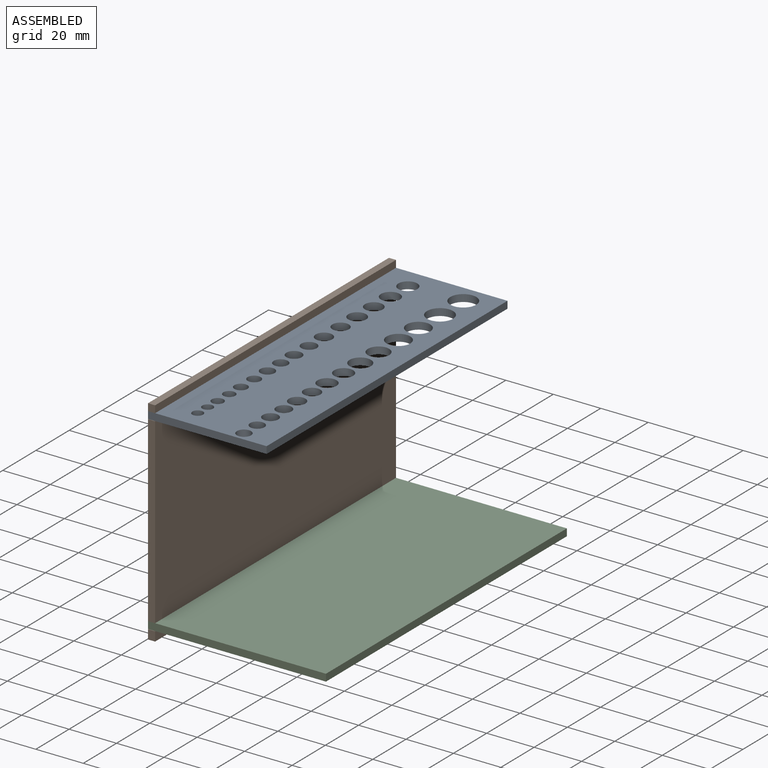
[diagram: assembled view]
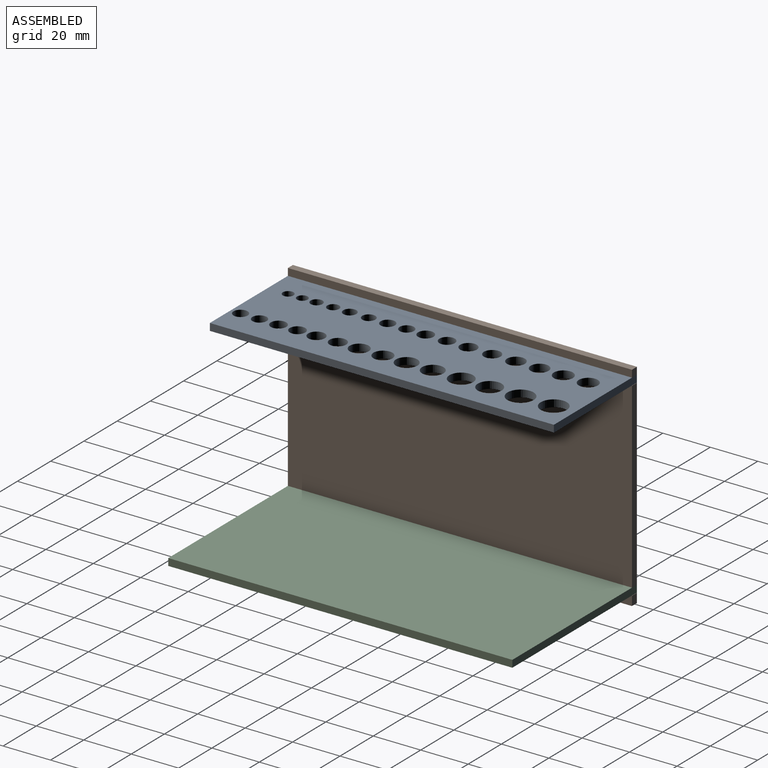
[diagram: assembled view, second angle]
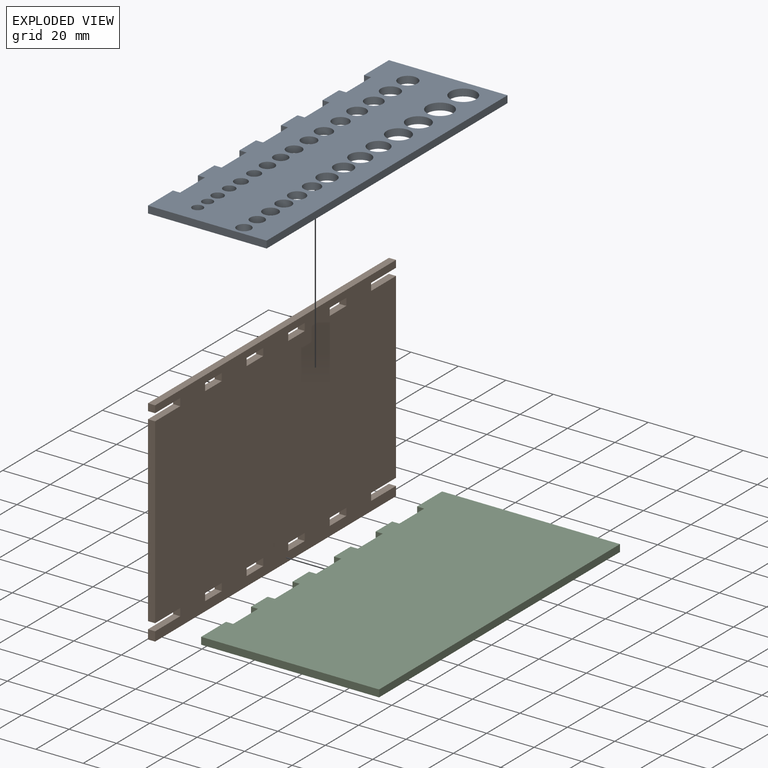
[diagram: exploded view]
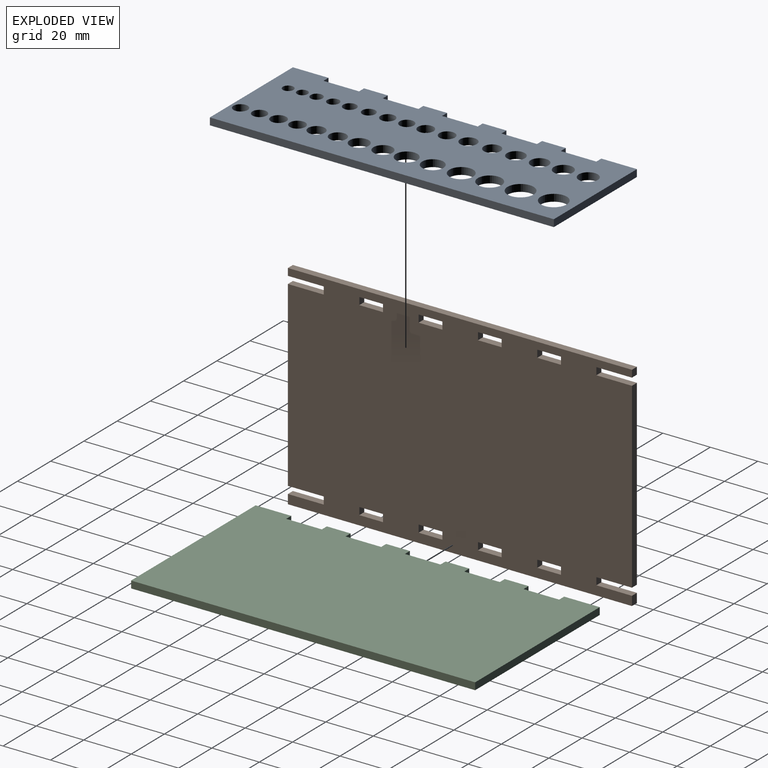
[diagram: exploded view, second angle]
ASSEMBLY  parts=3 mates=6
PART A: 56 faces, bbox 50x145x3 mm
  f0: plane 3x3mm, normal (0,1,0), area 9mm2, adj f1,f8,f10,f11
  f1: plane 15x3mm, normal (-1,0,0), area 45mm2, adj f0,f2,f10,f11
  f2: plane 3x3mm, normal (0,-1,0), area 9mm2, adj f1,f9,f10,f11
  f3: plane 145x3mm, normal (1,0,0), area 435mm2, adj f10,f11,f12,f39
  f4: plane 15x3mm, normal (-1,0,0), area 45mm2, adj f10,f11,f12,f36
  f5: plane 10x3mm, normal (-1,0,0), area 30mm2, adj f10,f11,f33,f37
  f6: plane 10x3mm, normal (-1,0,0), area 30mm2, adj f10,f11,f30,f35
  f7: plane 10x3mm, normal (-1,0,0), area 30mm2, adj f10,f11,f27,f32
  f8: plane 10x3mm, normal (-1,0,0), area 30mm2, adj f0,f10,f11,f29
  f9: plane 15x3mm, normal (-1,0,0), area 45mm2, adj f2,f10,f11,f39
  f10: plane 145x50mm, normal (0,0,1), area 5742.8mm2, adj f0,f1,f2,f3,f4,f5,f6,f7
  f11: plane 145x50mm, normal (0,0,-1), area 5742.8mm2, adj f0,f1,f2,f3,f4,f5,f6,f7
  f12: plane 50x3mm, normal (0,-1,0), area 150mm2, adj f3,f4,f10,f11
  f13: cylinder r=3mm len=6mm, axis (0,0,1), area 56.5mm2, adj f10,f11
  f14: cylinder r=5.5mm len=11mm, axis (0,0,1), area 103.7mm2, adj f10,f11
  f15: cylinder r=5.5mm len=11mm, axis (0,0,1), area 103.7mm2, adj f10,f11
  f16: cylinder r=5mm len=10mm, axis (0,0,1), area 94.2mm2, adj f10,f11
  f17: cylinder r=5mm len=10mm, axis (0,0,1), area 94.2mm2, adj f10,f11
  f18: cylinder r=4.5mm len=9mm, axis (0,0,1), area 84.8mm2, adj f10,f11
  f19: cylinder r=4.5mm len=9mm, axis (0,0,1), area 84.8mm2, adj f10,f11
  f20: cylinder r=4mm len=8mm, axis (0,0,1), area 75.4mm2, adj f10,f11
  f21: cylinder r=4mm len=8mm, axis (0,0,1), area 75.4mm2, adj f10,f11
  f22: cylinder r=3.5mm len=7mm, axis (0,0,1), area 66mm2, adj f10,f11
  f23: cylinder r=3.5mm len=7mm, axis (0,0,1), area 66mm2, adj f10,f11
  f24: cylinder r=3.25mm len=6.5mm, axis (0,0,1), area 61.3mm2, adj f10,f11
  f25: cylinder r=3.25mm len=6.5mm, axis (0,0,1), area 61.3mm2, adj f10,f11
  f26: cylinder r=3mm len=6mm, axis (0,0,1), area 56.5mm2, adj f10,f11
  f27: plane 3x3mm, normal (0,1,0), area 9mm2, adj f7,f10,f11,f28
  f28: plane 15x3mm, normal (-1,0,0), area 45mm2, adj f10,f11,f27,f29
  f29: plane 3x3mm, normal (0,-1,0), area 9mm2, adj f8,f10,f11,f28
  f30: plane 3x3mm, normal (0,1,0), area 9mm2, adj f6,f10,f11,f31
  f31: plane 15x3mm, normal (-1,0,0), area 45mm2, adj f10,f11,f30,f32
  f32: plane 3x3mm, normal (0,-1,0), area 9mm2, adj f7,f10,f11,f31
  f33: plane 3x3mm, normal (0,1,0), area 9mm2, adj f5,f10,f11,f34
  f34: plane 15x3mm, normal (-1,0,0), area 45mm2, adj f10,f11,f33,f35
  f35: plane 3x3mm, normal (0,-1,0), area 9mm2, adj f6,f10,f11,f34
  f36: plane 3x3mm, normal (0,1,0), area 9mm2, adj f4,f10,f11,f38
  f37: plane 3x3mm, normal (0,-1,0), area 9mm2, adj f5,f10,f11,f38
  f38: plane 15x3mm, normal (-1,0,0), area 45mm2, adj f10,f11,f36,f37
  f39: plane 50x3mm, normal (0,1,0), area 150mm2, adj f3,f9,f10,f11
  f40: cylinder r=2.25mm len=4.5mm, axis (0,0,1), area 42.4mm2, adj f10,f11
  f41: cylinder r=2.25mm len=4.5mm, axis (0,0,1), area 42.4mm2, adj f10,f11
  f42: cylinder r=2.5mm len=5mm, axis (0,0,1), area 47.1mm2, adj f10,f11
  f43: cylinder r=2.5mm len=5mm, axis (0,0,1), area 47.1mm2, adj f10,f11
  f44: cylinder r=2.75mm len=5.5mm, axis (0,0,1), area 51.8mm2, adj f10,f11
  f45: cylinder r=2.75mm len=5.5mm, axis (0,0,1), area 51.8mm2, adj f10,f11
  f46: cylinder r=3mm len=6mm, axis (0,0,1), area 56.5mm2, adj f10,f11
  f47: cylinder r=3mm len=6mm, axis (0,0,1), area 56.5mm2, adj f10,f11
  f48: cylinder r=3.25mm len=6.5mm, axis (0,0,1), area 61.3mm2, adj f10,f11
  f49: cylinder r=3.25mm len=6.5mm, axis (0,0,1), area 61.3mm2, adj f10,f11
  f50: cylinder r=3.5mm len=7mm, axis (0,0,1), area 66mm2, adj f10,f11
  f51: cylinder r=3.5mm len=7mm, axis (0,0,1), area 66mm2, adj f10,f11
  f52: cylinder r=3.75mm len=7.5mm, axis (0,0,1), area 70.7mm2, adj f10,f11
  f53: cylinder r=3.75mm len=7.5mm, axis (0,0,1), area 70.7mm2, adj f10,f11
  f54: cylinder r=4mm len=8mm, axis (0,0,1), area 75.4mm2, adj f10,f11
  f55: cylinder r=4mm len=8mm, axis (0,0,1), area 75.4mm2, adj f10,f11
PART B: 54 faces, bbox 3x145x90 mm
  f0: plane 3.9x3mm, normal (0,1,0), area 11.7mm2, adj f4,f5,f9,f22
  f1: plane 76.9x3mm, normal (0,1,0), area 230.7mm2, adj f4,f5,f19,f20
  f2: plane 76.9x3mm, normal (0,-1,0), area 230.7mm2, adj f4,f5,f10,f25
  f3: plane 3x3mm, normal (0,-1,0), area 9mm2, adj f4,f5,f7,f12
  f4: plane 145x90mm, normal (1,0,0), area 12615.4mm2, adj f0,f1,f2,f3,f6,f7,f8,f9
  f5: plane 145x90mm, normal (-1,0,0), area 12615.4mm2, adj f0,f1,f2,f3,f6,f7,f8,f9
  f6: plane 3x3mm, normal (0,1,0), area 9mm2, adj f4,f5,f7,f17
  f7: plane 145x3mm, normal (0,0,1), area 435mm2, adj f3,f4,f5,f6
  f8: plane 3.9x3mm, normal (0,-1,0), area 11.7mm2, adj f4,f5,f9,f23
  f9: plane 145x3mm, normal (0,0,-1), area 435mm2, adj f0,f4,f5,f8
  f10: plane 15.1x3mm, normal (0,0,1), area 45.3mm2, adj f2,f4,f5,f11
  f11: plane 3.1x3mm, normal (0,-1,0), area 9.3mm2, adj f4,f5,f10,f12
  f12: plane 15.1x3mm, normal (0,0,-1), area 45.3mm2, adj f3,f4,f5,f11
  f13: plane 10x3mm, normal (0,0,1), area 30mm2, adj f4,f5,f14,f15
  f14: plane 3.1x3mm, normal (0,1,0), area 9.3mm2, adj f4,f5,f13,f16
  f15: plane 3.1x3mm, normal (0,-1,0), area 9.3mm2, adj f4,f5,f13,f16
  f16: plane 10x3mm, normal (0,0,-1), area 30mm2, adj f4,f5,f14,f15
  f17: plane 15x3mm, normal (0,0,-1), area 45mm2, adj f4,f5,f6,f18
  f18: plane 3.1x3mm, normal (0,1,0), area 9.3mm2, adj f4,f5,f17,f19
  f19: plane 15x3mm, normal (0,0,1), area 45mm2, adj f1,f4,f5,f18
  f20: plane 15x3mm, normal (0,0,-1), area 45mm2, adj f1,f4,f5,f21
  f21: plane 3.1x3mm, normal (0,1,0), area 9.3mm2, adj f4,f5,f20,f22
  f22: plane 15x3mm, normal (0,0,1), area 45mm2, adj f0,f4,f5,f21
  f23: plane 15.1x3mm, normal (0,0,1), area 45.3mm2, adj f4,f5,f8,f24
  f24: plane 3.1x3mm, normal (0,-1,0), area 9.3mm2, adj f4,f5,f23,f25
  f25: plane 15.1x3mm, normal (0,0,-1), area 45.3mm2, adj f2,f4,f5,f24
  f26: plane 3.1x3mm, normal (0,1,0), area 9.3mm2, adj f4,f5,f27,f28
  f27: plane 10x3mm, normal (0,0,-1), area 30mm2, adj f4,f5,f26,f29
  f28: plane 10x3mm, normal (0,0,1), area 30mm2, adj f4,f5,f26,f29
  f29: plane 3.1x3mm, normal (0,-1,0), area 9.3mm2, adj f4,f5,f27,f28
  f30: plane 10x3mm, normal (0,0,1), area 30mm2, adj f4,f5,f31,f32
  f31: plane 3.1x3mm, normal (0,1,0), area 9.3mm2, adj f4,f5,f30,f33
  f32: plane 3.1x3mm, normal (0,-1,0), area 9.3mm2, adj f4,f5,f30,f33
  f33: plane 10x3mm, normal (0,0,-1), area 30mm2, adj f4,f5,f31,f32
  f34: plane 10x3mm, normal (0,0,1), area 30mm2, adj f4,f5,f35,f36
  f35: plane 3.1x3mm, normal (0,1,0), area 9.3mm2, adj f4,f5,f34,f37
  f36: plane 3.1x3mm, normal (0,-1,0), area 9.3mm2, adj f4,f5,f34,f37
  f37: plane 10x3mm, normal (0,0,-1), area 30mm2, adj f4,f5,f35,f36
  f38: plane 10x3mm, normal (0,0,1), area 30mm2, adj f4,f5,f39,f40
  f39: plane 3.1x3mm, normal (0,1,0), area 9.3mm2, adj f4,f5,f38,f41
  f40: plane 3.1x3mm, normal (0,-1,0), area 9.3mm2, adj f4,f5,f38,f41
  f41: plane 10x3mm, normal (0,0,-1), area 30mm2, adj f4,f5,f39,f40
  f42: plane 10x3mm, normal (0,0,1), area 30mm2, adj f4,f5,f43,f44
  f43: plane 3.1x3mm, normal (0,1,0), area 9.3mm2, adj f4,f5,f42,f45
  f44: plane 3.1x3mm, normal (0,-1,0), area 9.3mm2, adj f4,f5,f42,f45
  f45: plane 10x3mm, normal (0,0,-1), area 30mm2, adj f4,f5,f43,f44
  f46: plane 10x3mm, normal (0,0,1), area 30mm2, adj f4,f5,f47,f48
  f47: plane 3.1x3mm, normal (0,1,0), area 9.3mm2, adj f4,f5,f46,f49
  f48: plane 3.1x3mm, normal (0,-1,0), area 9.3mm2, adj f4,f5,f46,f49
  f49: plane 10x3mm, normal (0,0,-1), area 30mm2, adj f4,f5,f47,f48
  f50: plane 10x3mm, normal (0,0,1), area 30mm2, adj f4,f5,f51,f52
  f51: plane 3.1x3mm, normal (0,1,0), area 9.3mm2, adj f4,f5,f50,f53
  f52: plane 3.1x3mm, normal (0,-1,0), area 9.3mm2, adj f4,f5,f50,f53
  f53: plane 10x3mm, normal (0,0,-1), area 30mm2, adj f4,f5,f51,f52
PART C: 26 faces, bbox 75x145x3 mm
  f0: plane 3x3mm, normal (0,1,0), area 9mm2, adj f1,f7,f9,f10
  f1: plane 15x3mm, normal (-1,0,0), area 45mm2, adj f0,f2,f9,f10
  f2: plane 3x3mm, normal (0,-1,0), area 9mm2, adj f1,f8,f9,f10
  f3: plane 15x3mm, normal (-1,0,0), area 45mm2, adj f9,f10,f11,f21
  f4: plane 10x3mm, normal (-1,0,0), area 30mm2, adj f9,f10,f18,f22
  f5: plane 10x3mm, normal (-1,0,0), area 30mm2, adj f9,f10,f15,f20
  f6: plane 10x3mm, normal (-1,0,0), area 30mm2, adj f9,f10,f12,f17
  f7: plane 10x3mm, normal (-1,0,0), area 30mm2, adj f0,f9,f10,f14
  f8: plane 15x3mm, normal (-1,0,0), area 45mm2, adj f2,f9,f10,f24
  f9: plane 145x75mm, normal (0,0,1), area 10650mm2, adj f0,f1,f2,f3,f4,f5,f6,f7
  f10: plane 145x75mm, normal (0,0,-1), area 10650mm2, adj f0,f1,f2,f3,f4,f5,f6,f7
  f11: plane 75x3mm, normal (0,-1,0), area 225mm2, adj f3,f9,f10,f25
  f12: plane 3x3mm, normal (0,1,0), area 9mm2, adj f6,f9,f10,f13
  f13: plane 15x3mm, normal (-1,0,0), area 45mm2, adj f9,f10,f12,f14
  f14: plane 3x3mm, normal (0,-1,0), area 9mm2, adj f7,f9,f10,f13
  f15: plane 3x3mm, normal (0,1,0), area 9mm2, adj f5,f9,f10,f16
  f16: plane 15x3mm, normal (-1,0,0), area 45mm2, adj f9,f10,f15,f17
  f17: plane 3x3mm, normal (0,-1,0), area 9mm2, adj f6,f9,f10,f16
  f18: plane 3x3mm, normal (0,1,0), area 9mm2, adj f4,f9,f10,f19
  f19: plane 15x3mm, normal (-1,0,0), area 45mm2, adj f9,f10,f18,f20
  f20: plane 3x3mm, normal (0,-1,0), area 9mm2, adj f5,f9,f10,f19
  f21: plane 3x3mm, normal (0,1,0), area 9mm2, adj f3,f9,f10,f23
  f22: plane 3x3mm, normal (0,-1,0), area 9mm2, adj f4,f9,f10,f23
  f23: plane 15x3mm, normal (-1,0,0), area 45mm2, adj f9,f10,f21,f22
  f24: plane 75x3mm, normal (0,1,0), area 225mm2, adj f8,f9,f10,f25
  f25: plane 145x3mm, normal (1,0,0), area 435mm2, adj f9,f10,f11,f24
PLACE A t=(61.24,-177,3.84)mm
PLACE B t=(23.74,-136.76,-19.61)mm
PLACE C t=(61.24,-177,-76.16)mm
MATE planar A.f10 <-> B.f12  axis (0,0,1) through (48.74,-209.26,22.39)mm
MATE planar A.f5 <-> B.f5  axis (-1,0,0) through (23.74,-174.26,20.89)mm
MATE planar C.f8 <-> B.f5  axis (-1,0,0) through (23.74,-71.76,-59.11)mm
MATE planar C.f24 <-> B.f1  axis (0,1,0) through (61.24,-64.26,-59.11)mm
MATE planar A.f12 <-> B.f2  axis (0,-1,0) through (48.74,-209.26,20.89)mm
MATE planar B.f20 <-> C.f9  axis (0,0,-1) through (25.24,-71.76,-57.61)mm
